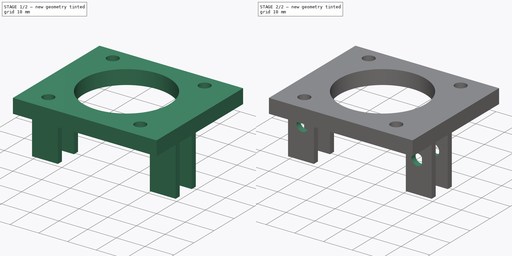
[diagram: build sequence overview — one tinted view per stage of 2, left to right]
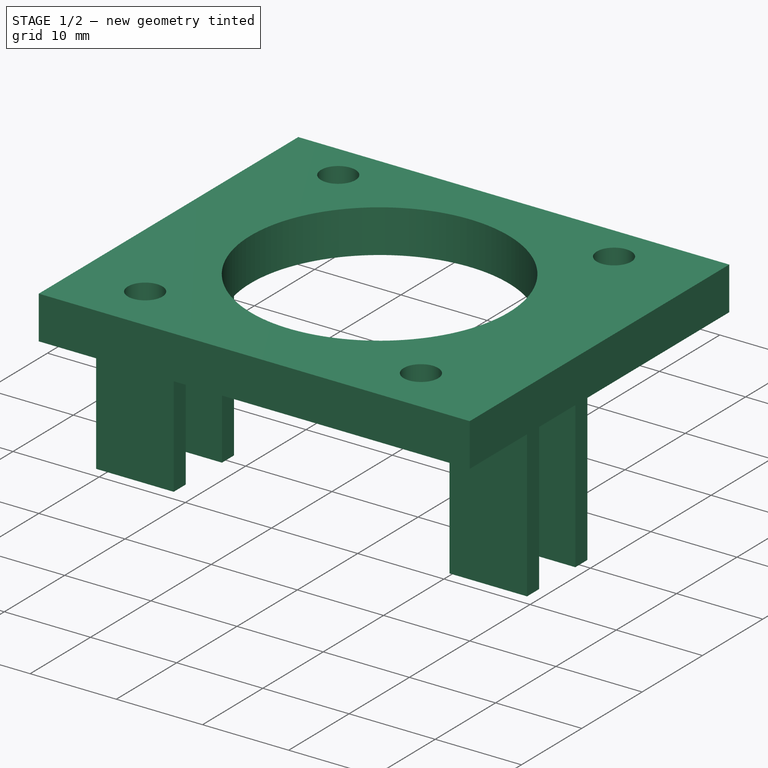
[diagram: stage 1 of 2 — iso view after this stage's code; geometry added in this stage tinted green]
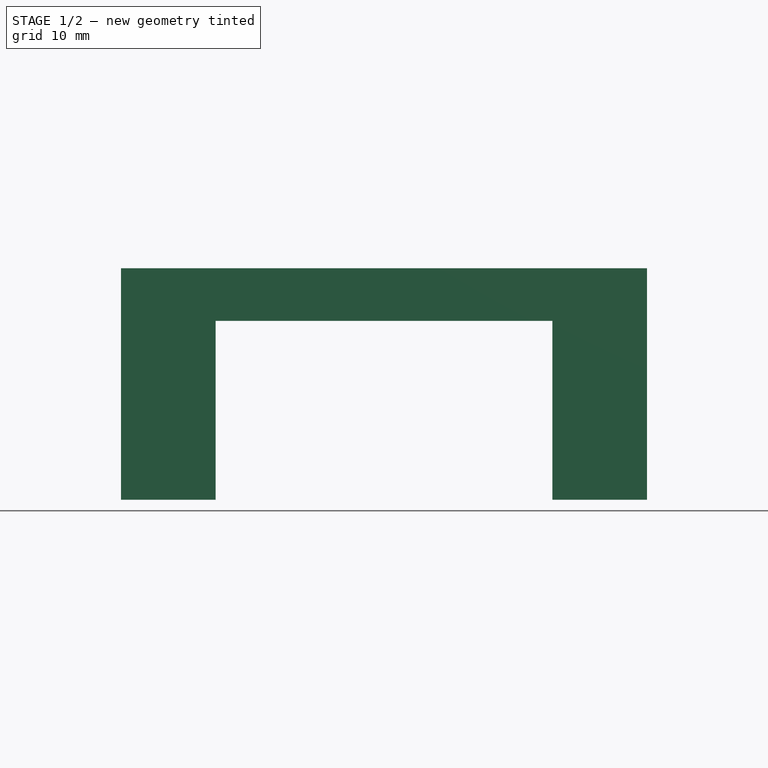
[diagram: stage 1 of 2 — front view after this stage's code; geometry added in this stage tinted green]
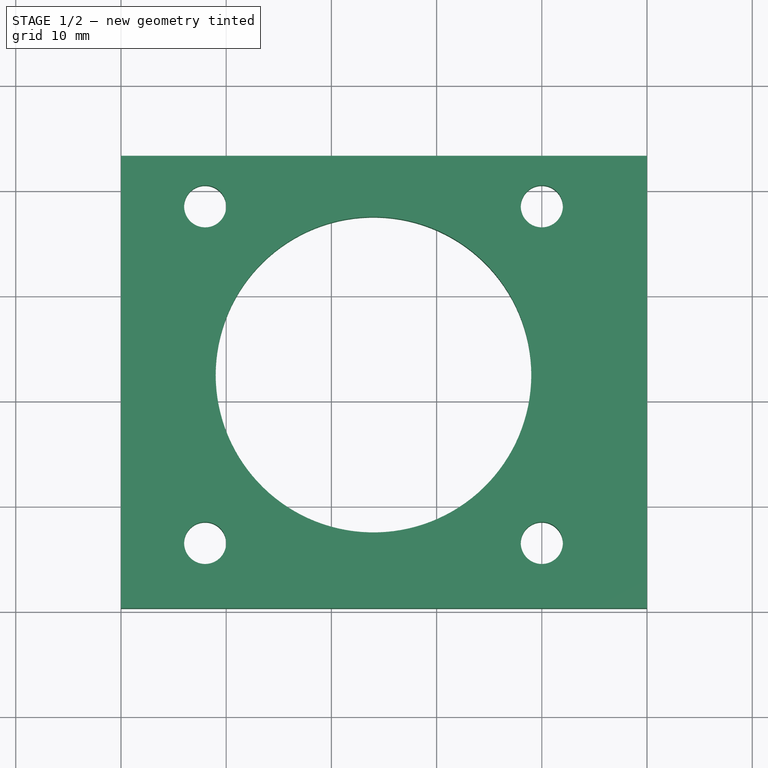
[diagram: stage 1 of 2 — top view after this stage's code; geometry added in this stage tinted green]
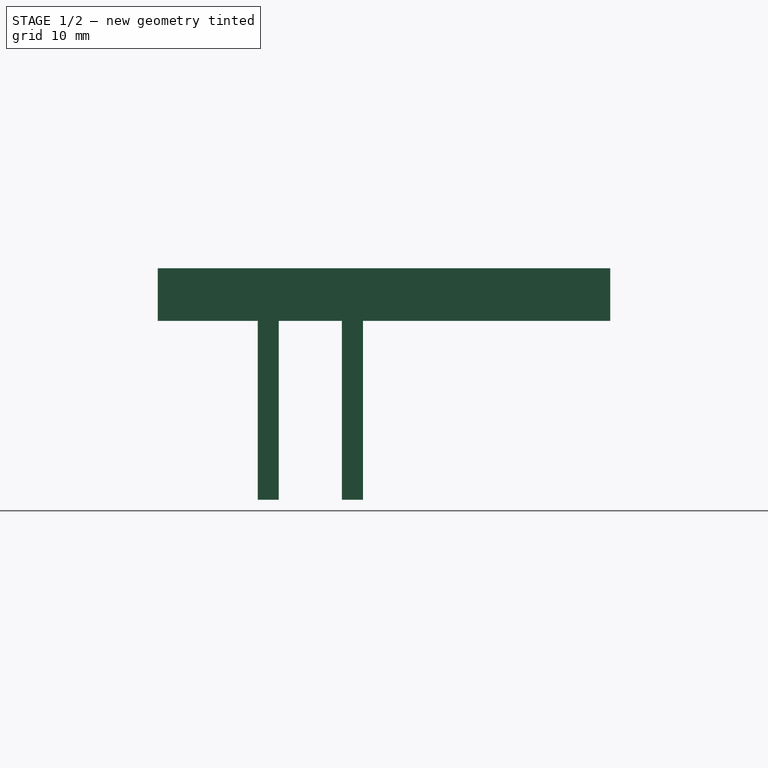
[diagram: stage 1 of 2 — right view after this stage's code; geometry added in this stage tinted green]
FCSTD DOCUMENT  (FreeCAD 1.0R39285 (Git))
Label: focuser-motor-holder
License: All rights reserved
LicenseURL: https://en.wikipedia.org/wiki/All_rights_reserved
objects: Sketcher::SketchObject×3, PartDesign::Pad×2, PartDesign::Pocket×1, PartDesign::Body×1
note: 16 computed .brp shape members not serialized (recipe doc carries the construction recipe); baked Part::Feature solids carry a one-line shape summary decoded from their .brp

FEATURE [Sketcher::SketchObject] Sketch
  ArcFitTolerance = 1e-06
  AttachmentSupport = -> [XY_Plane]
  FullyConstrained = true
  MakeInternals = false
  MapMode = 5
  sketch-geometry (9):
    g0: LineSegment StartX=0 StartY=0 StartZ=0 EndX=50 EndY=0 EndZ=0
    g1: LineSegment StartX=50 StartY=0 StartZ=0 EndX=50 EndY=43 EndZ=0
    g2: LineSegment StartX=50 StartY=43 StartZ=0 EndX=0 EndY=43 EndZ=0
    g3: LineSegment StartX=0 StartY=43 StartZ=0 EndX=0 EndY=0 EndZ=0
    g4: Circle CenterX=24 CenterY=22.2 CenterZ=0 NormalX=0 NormalY=0 NormalZ=1 AngleXU=0 Radius=15
    g5: Circle CenterX=40 CenterY=38.2 CenterZ=0 NormalX=0 NormalY=0 NormalZ=1 AngleXU=0 Radius=2
    g6: Circle CenterX=8 CenterY=38.2 CenterZ=0 NormalX=0 NormalY=0 NormalZ=1 AngleXU=0 Radius=2
    g7: Circle CenterX=8 CenterY=6.2 CenterZ=0 NormalX=0 NormalY=0 NormalZ=1 AngleXU=0 Radius=2
    g8: Circle CenterX=40 CenterY=6.2 CenterZ=0 NormalX=0 NormalY=0 NormalZ=1 AngleXU=0 Radius=2
  constraints (26):
    c: Coincident(g0,g1)
    c: Coincident(g1,g2)
    c: Coincident(g2,g3)
    c: Coincident(g3,g0)
    c: Horizontal(g0)
    c: Horizontal(g2)
    c: Vertical(g1)
    c: Vertical(g3)
    c: Distance(g1,g3) = 50
    c: Distance(g0,g2) = 43
    c: Coincident(g0,g-1)
    c: Diameter(g4) = 30
    c: DistanceY(g0,g4) = 22.2
    c: DistanceX(g0,g4) = 24
    c: Diameter(g5) = 4
    c: Diameter(g6) = 4
    c: DistanceY(g5,g6) = 0
    c: DistanceX(g6,g5) = 32
    c: DistanceX(g0,g6) = 8
    c: Diameter(g7) = 4
    c: DistanceY(g0,g7) = 6.2
    c: DistanceY(g7,g6) = 32
    c: DistanceX(g7,g6) = 0
    c: Diameter(g8) = 4
    c: DistanceX(g8,g5) = 0
    c: DistanceY(g7,g8) = 0
FEATURE [PartDesign::Pad] Pad
  Direction = (0,0,1)
  Length = 5
  Length2 = 10
  Profile = -> Sketch
  ReferenceAxis = -> Sketch [N_Axis]
  Refine = true
  Suppressed = false
  Type = 0
FEATURE [Sketcher::SketchObject] Sketch001
  ArcFitTolerance = 1e-06
  AttachmentSupport = -> [XY_Plane]
  FullyConstrained = true
  MakeInternals = false
  MapMode = 5
  sketch-geometry (16):
    g0: LineSegment StartX=50 StartY=11.5 StartZ=0 EndX=50 EndY=9.5 EndZ=0
    g1: LineSegment StartX=50 StartY=9.5 StartZ=0 EndX=41 EndY=9.5 EndZ=0
    g2: LineSegment StartX=41 StartY=9.5 StartZ=0 EndX=41 EndY=11.5 EndZ=0
    g3: LineSegment StartX=41 StartY=11.5 StartZ=0 EndX=50 EndY=11.5 EndZ=0
    g4: LineSegment StartX=0 StartY=11.5 StartZ=0 EndX=0 EndY=9.5 EndZ=0
    g5: LineSegment StartX=0 StartY=9.5 StartZ=0 EndX=9 EndY=9.5 EndZ=0
    g6: LineSegment StartX=9 StartY=9.5 StartZ=0 EndX=9 EndY=11.5 EndZ=0
    g7: LineSegment StartX=9 StartY=11.5 StartZ=0 EndX=0 EndY=11.5 EndZ=0
    g8: LineSegment StartX=0 StartY=17.5 StartZ=0 EndX=0 EndY=19.5 EndZ=0
    g9: LineSegment StartX=0 StartY=19.5 StartZ=0 EndX=9 EndY=19.5 EndZ=0
    g10: LineSegment StartX=9 StartY=19.5 StartZ=0 EndX=9 EndY=17.5 EndZ=0
    g11: LineSegment StartX=9 StartY=17.5 StartZ=0 EndX=0 EndY=17.5 EndZ=0
    g12: LineSegment StartX=50 StartY=19.5 StartZ=0 EndX=50 EndY=17.5 EndZ=0
    g13: LineSegment StartX=50 StartY=17.5 StartZ=0 EndX=41 EndY=17.5 EndZ=0
    g14: LineSegment StartX=41 StartY=17.5 StartZ=0 EndX=41 EndY=19.5 EndZ=0
    g15: LineSegment StartX=41 StartY=19.5 StartZ=0 EndX=50 EndY=19.5 EndZ=0
  constraints (48):
    c: Coincident(g0,g1)
    c: Coincident(g1,g2)
    c: Coincident(g2,g3)
    c: Coincident(g3,g0)
    c: Vertical(g0)
    c: Vertical(g2)
    c: Horizontal(g1)
    c: Horizontal(g3)
    c: Distance(g0,g2) = 9
    c: Distance(g1,g3) = 2
    c: DistanceY(g-1,g1) = 9.5
    c: DistanceX(g-1,g0) = 50
    c: Coincident(g4,g5)
    c: Coincident(g5,g6)
    c: Coincident(g6,g7)
    c: Coincident(g7,g4)
    c: Vertical(g4)
    c: Vertical(g6)
    c: Horizontal(g5)
    c: Horizontal(g7)
    c: Distance(g4,g6) = 9
    c: Distance(g5,g7) = 2
    c: DistanceY(g-1,g5) = 9.5
    c: DistanceX(g-1,g4) = 0
    c: Coincident(g8,g9)
    c: Coincident(g9,g10)
    c: Coincident(g10,g11)
    c: Coincident(g11,g8)
    c: Vertical(g8)
    c: Vertical(g10)
    c: Horizontal(g9)
    c: Horizontal(g11)
    c: Distance(g8,g10) = 9
    c: Distance(g9,g11) = 2
    c: DistanceY(g-1,g8) = 17.5
    c: DistanceX(g-1,g8) = 0
    c: Coincident(g12,g13)
    c: Coincident(g13,g14)
    c: Coincident(g14,g15)
    c: Coincident(g15,g12)
    c: Vertical(g12)
    c: Vertical(g14)
    c: Horizontal(g13)
    c: Horizontal(g15)
    c: Distance(g12,g14) = 9
    c: Distance(g13,g15) = 2
    c: DistanceY(g-1,g12) = 17.5
    c: DistanceX(g-1,g12) = 50
FEATURE [PartDesign::Pad] Pad001
  BaseFeature = -> Pad
  Direction = (0,0,1)
  Length = 17
  Length2 = 10
  Profile = -> Sketch001
  ReferenceAxis = -> Sketch001 [N_Axis]
  Refine = true
  Reversed = true
  Suppressed = false
  Type = 0
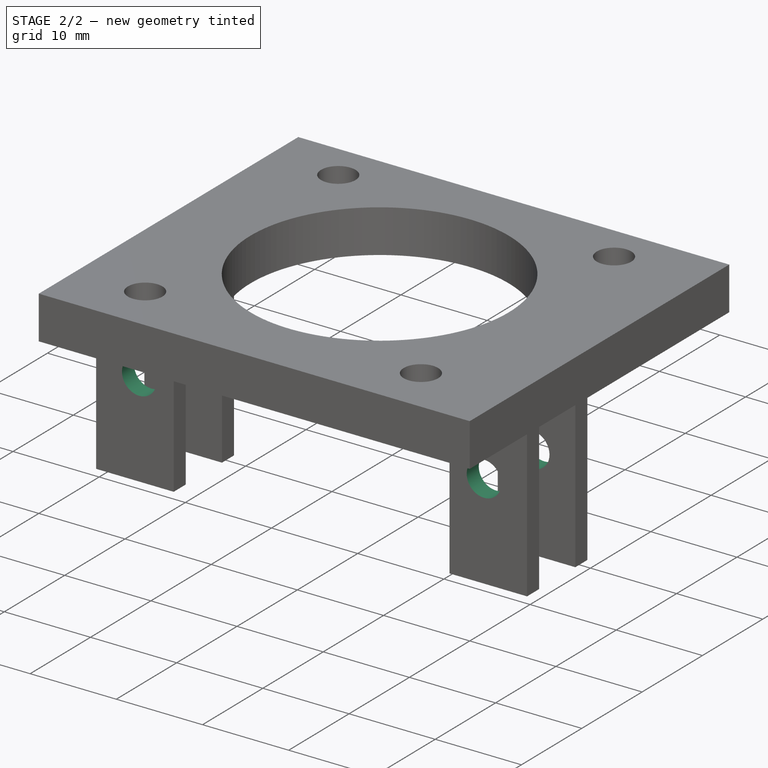
[diagram: stage 2 of 2 — iso view after this stage's code; geometry added in this stage tinted green]
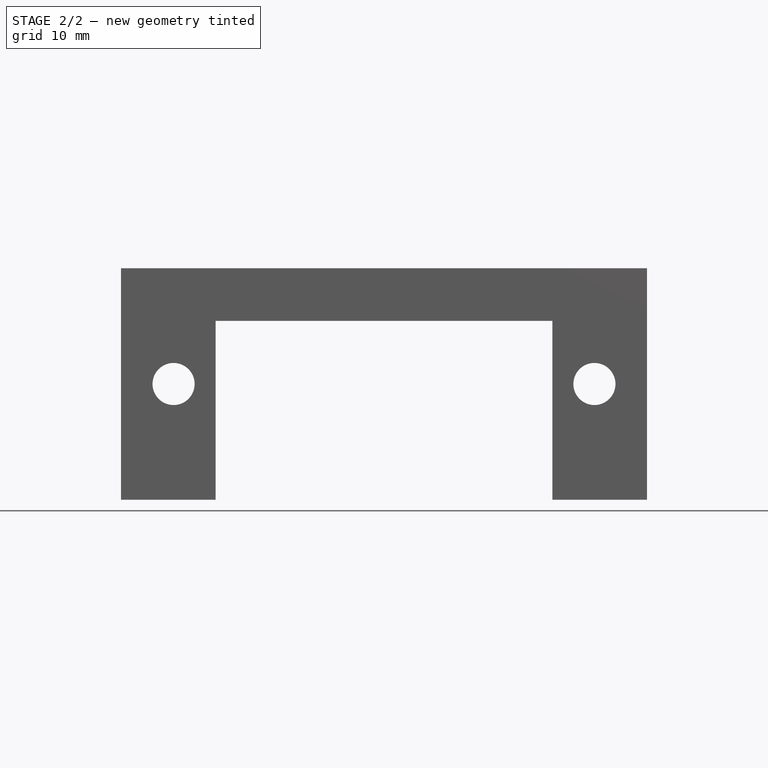
[diagram: stage 2 of 2 — front view after this stage's code; geometry added in this stage tinted green]
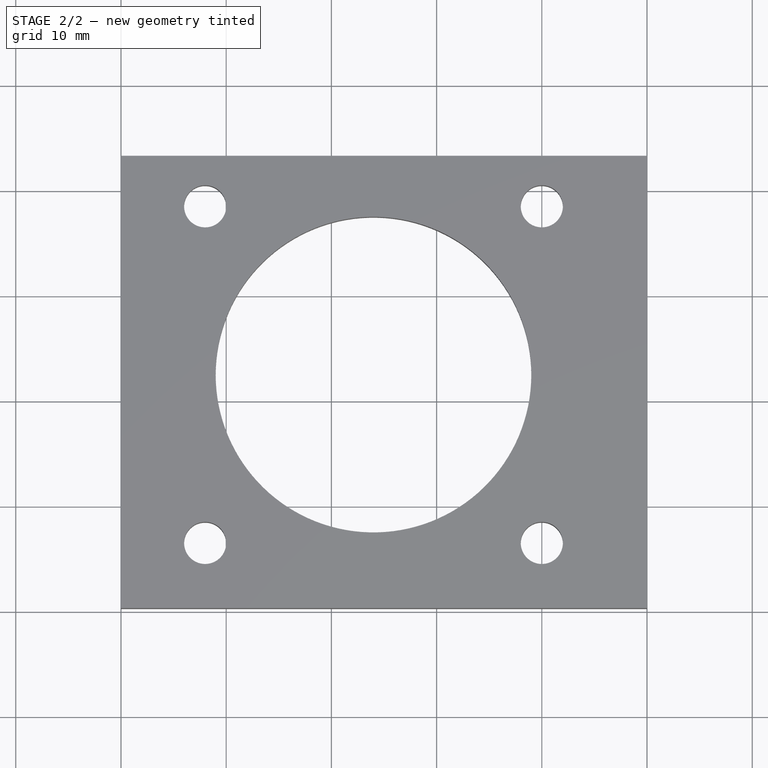
[diagram: stage 2 of 2 — top view after this stage's code; geometry added in this stage tinted green]
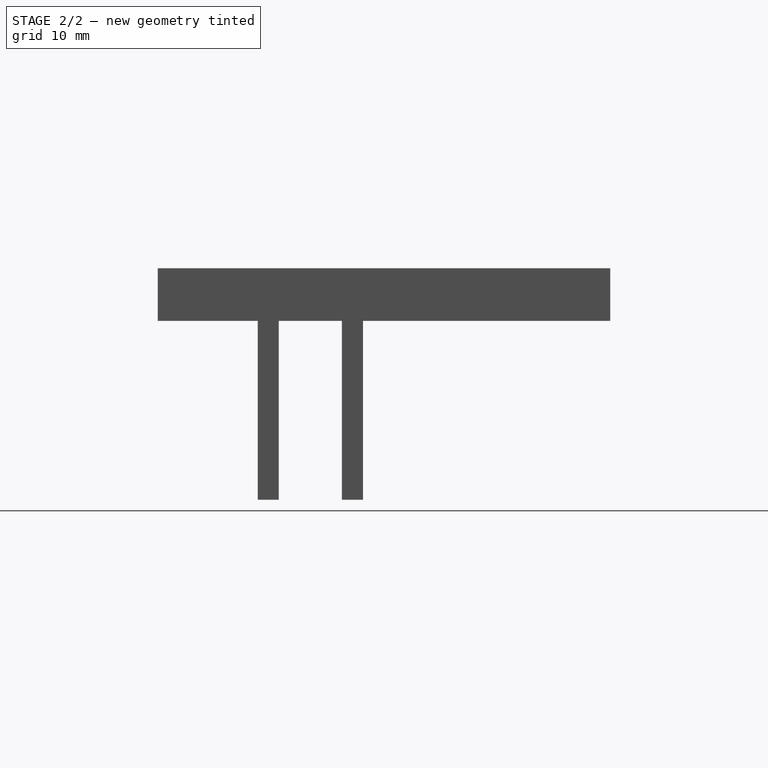
[diagram: stage 2 of 2 — right view after this stage's code; geometry added in this stage tinted green]
FEATURE [Sketcher::SketchObject] Sketch002
  ArcFitTolerance = 1e-06
  AttachmentSupport = -> [Pad001]
  FullyConstrained = true
  MakeInternals = false
  MapMode = 5
  Placement = pos=(0,19.5,0) rot=(0,0.707107,0.707107;3.14159rad)
  sketch-geometry (2):
    g0: Circle CenterX=-5 CenterY=-6 CenterZ=0 NormalX=0 NormalY=0 NormalZ=1 AngleXU=0 Radius=2
    g1: Circle CenterX=-45 CenterY=-6 CenterZ=0 NormalX=0 NormalY=0 NormalZ=1 AngleXU=0 Radius=2
  constraints (6):
    c: Diameter(g0) = 4
    c: DistanceX(g0,g-1) = 5
    c: Diameter(g1) = 4
    c: DistanceX(g1,g-1) = 45
    c: DistanceY(g1,g0) = 0
    c: DistanceY(g0,g-1) = 6
FEATURE [PartDesign::Pocket] Pocket
  BaseFeature = -> Pad001
  Direction = (0,-1,2e-16)
  Length = 11
  Length2 = 5
  Profile = -> Sketch002
  ReferenceAxis = -> Sketch002 [N_Axis]
  Refine = true
  Suppressed = false
  Type = 0
FEATURE [PartDesign::Body] Body  label="focuser-motor-holder"
  AllowCompound = false
  Group = -> [Sketch,Pad,Sketch001,Pad001,Sketch002,Pocket]
  Origin = -> Origin
  Tip = -> Pocket
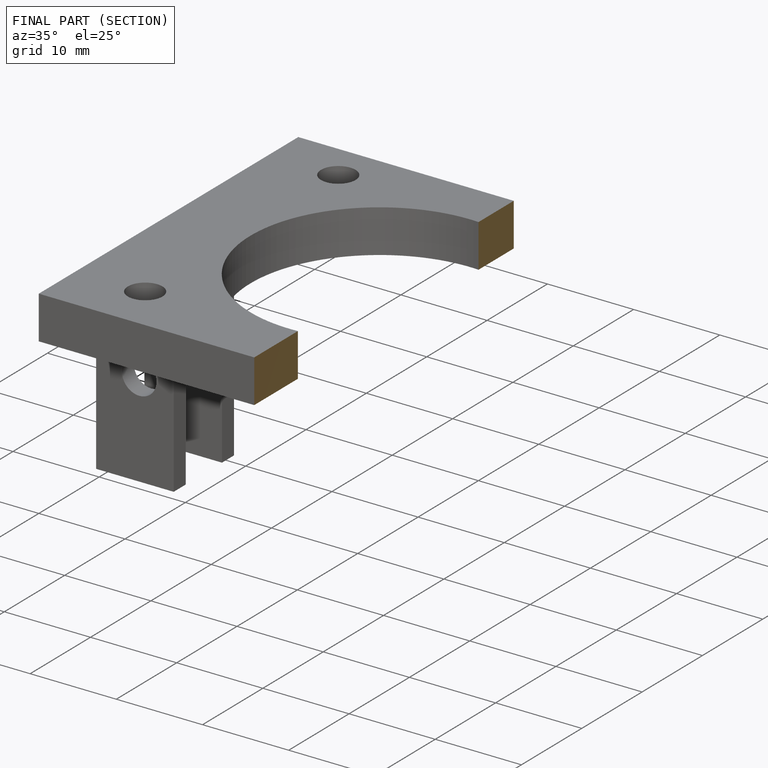
[diagram: finished part — half-section view (interior)]
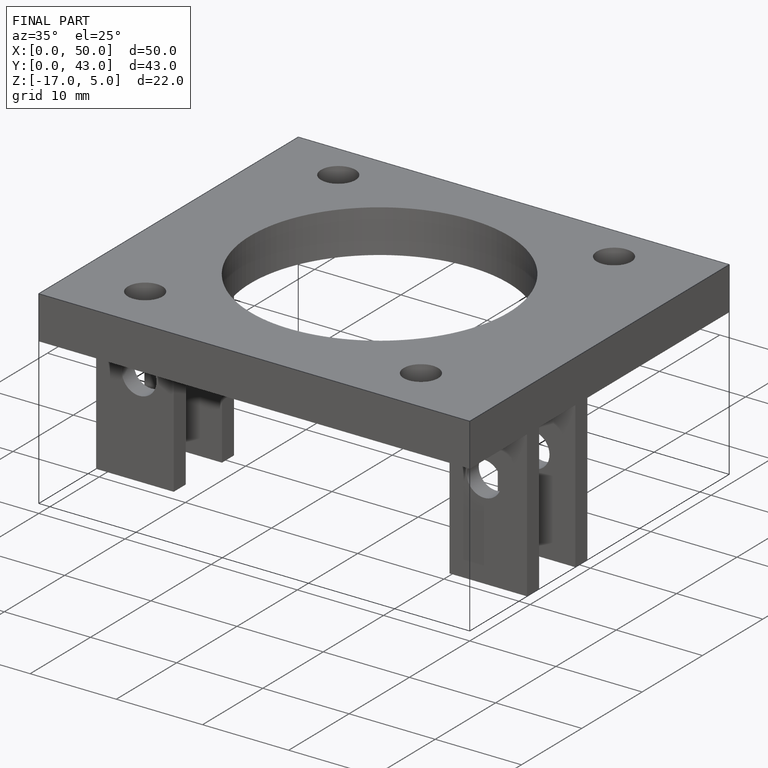
[diagram: finished part — iso view with bounding-box wireframe]
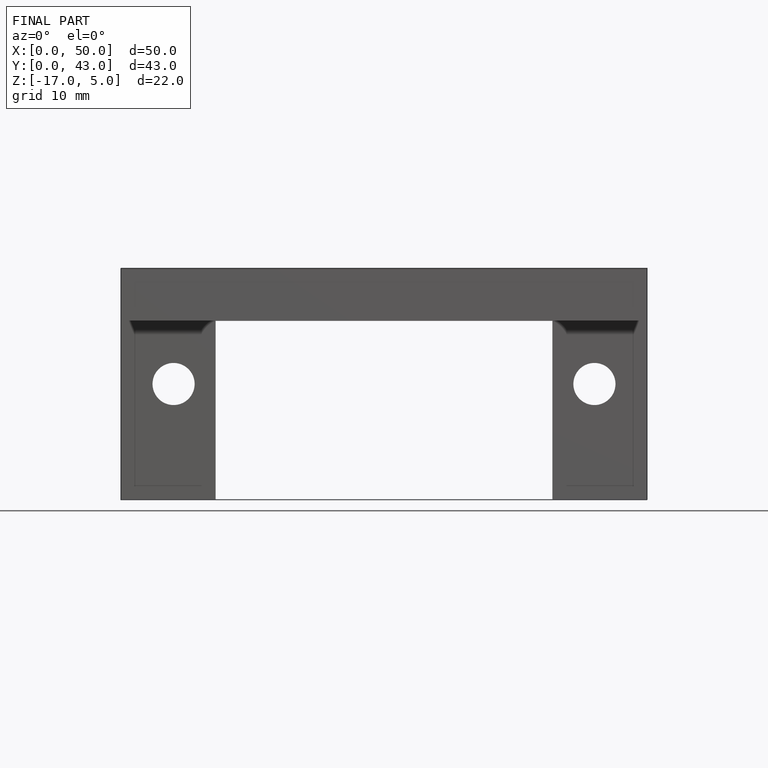
[diagram: finished part — front view with bounding-box wireframe]
